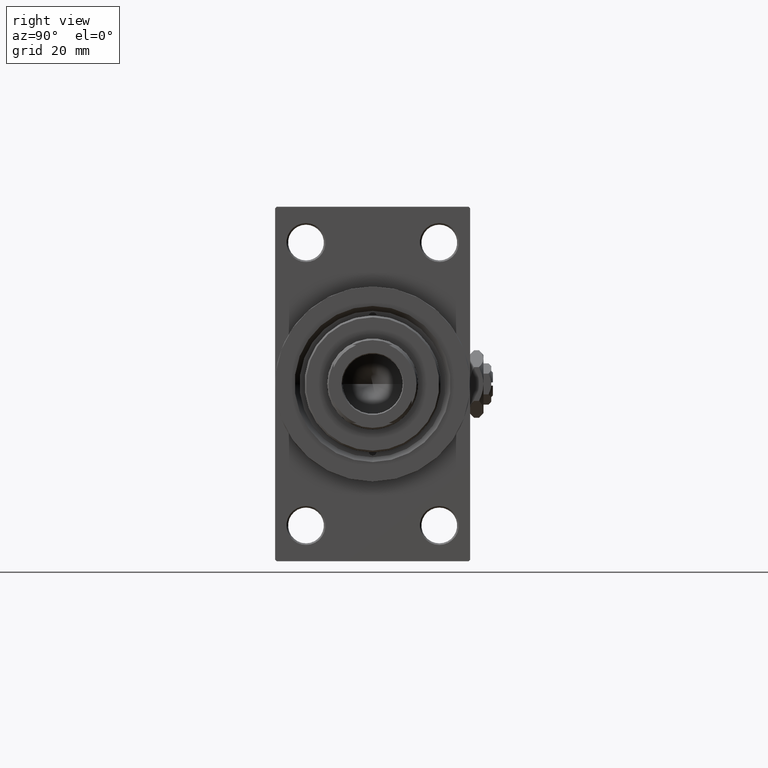
[diagram: clean part render]
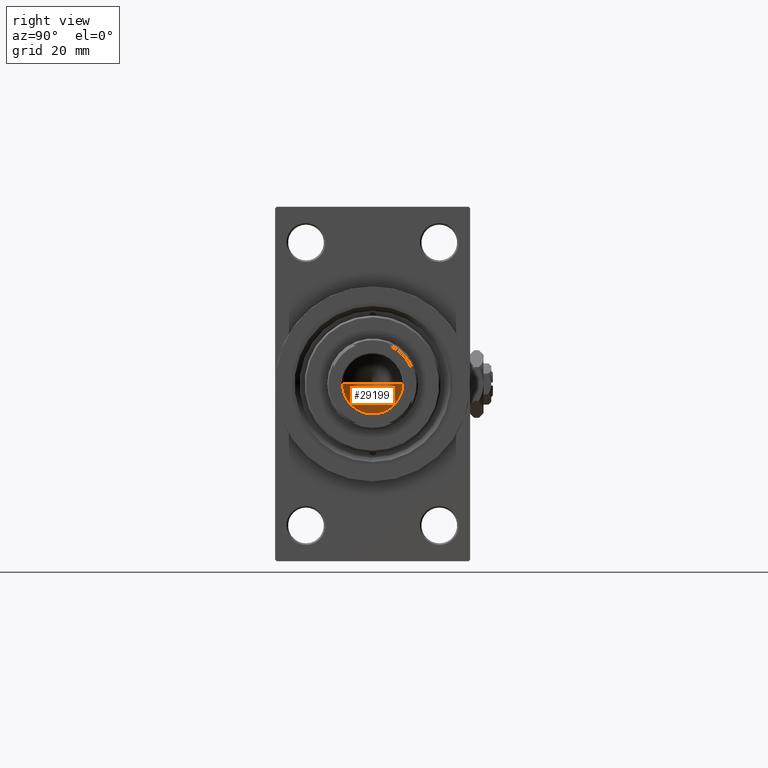
[diagram: same view with one face highlighted and labeled with its STEP entity id]
A machine part, right view. The second image highlights one B-rep face of the part: STEP entity #29199.
In plain terms, the highlighted conical surface has half-angle 59 deg.
Its self-contained STEP definition (entity closure, byte-faithful):
#1309 = VERTEX_POINT ( 'NONE', #42555 ) ;
#1711 = EDGE_CURVE ( 'NONE', #1309, #15298, #20523, .T. ) ;
#3928 = EDGE_CURVE ( 'NONE', #23798, #15298, #18252, .T. ) ;
#9197 = EDGE_CURVE ( 'NONE', #1309, #23798, #11355, .T. ) ;
#9728 = CARTESIAN_POINT ( 'NONE',  ( 9.249999999999992895, 0.000000000000000000, 101.0000000000000000 ) ) ;
#10203 = VECTOR ( 'NONE', #28476, 1000.000000000000000 ) ;
#10403 = DIRECTION ( 'NONE',  ( 1.000000000000000000, 0.000000000000000000, 0.000000000000000000 ) ) ;
#11067 = CARTESIAN_POINT ( 'NONE',  ( -9.249999999999992895, 1.132798289211300712E-15, 101.0000000000000000 ) ) ;
#11167 = EDGE_LOOP ( 'NONE', ( #13072, #34761, #23572 ) ) ;
#11355 = LINE ( 'NONE', #45201, #48647 ) ;
#13072 = ORIENTED_EDGE ( 'NONE', *, *, #1711, .F. ) ;
#13654 = AXIS2_PLACEMENT_3D ( 'NONE', #48258, #21363, #10403 ) ;
#15298 = VERTEX_POINT ( 'NONE', #11067 ) ;
#17962 = DIRECTION ( 'NONE',  ( 1.000000000000000000, 0.000000000000000000, 0.000000000000000000 ) ) ;
#18213 = DIRECTION ( 'NONE',  ( -0.000000000000000000, -0.000000000000000000, 1.000000000000000000 ) ) ;
#18252 = CIRCLE ( 'NONE', #23830, 9.249999999999992895 ) ;
#20523 = LINE ( 'NONE', #38961, #10203 ) ;
#21363 = DIRECTION ( 'NONE',  ( -0.000000000000000000, -0.000000000000000000, 1.000000000000000000 ) ) ;
#22070 = DIRECTION ( 'NONE',  ( 0.8571673007021117785, 0.000000000000000000, 0.5150380749100550437 ) ) ;
#23572 = ORIENTED_EDGE ( 'NONE', *, *, #3928, .T. ) ;
#23798 = VERTEX_POINT ( 'NONE', #9728 ) ;
#23830 = AXIS2_PLACEMENT_3D ( 'NONE', #30394, #18213, #17962 ) ;
#28476 = DIRECTION ( 'NONE',  ( -0.8571673007021117785, 1.049727191138617956E-16, 0.5150380749100550437 ) ) ;
#29078 = FACE_OUTER_BOUND ( 'NONE', #11167, .T. ) ;
#29199 = ADVANCED_FACE ( 'NONE', ( #29078 ), #38294, .F. ) ;
#30394 = CARTESIAN_POINT ( 'NONE',  ( 0.000000000000000000, 0.000000000000000000, 101.0000000000000000 ) ) ;
#34761 = ORIENTED_EDGE ( 'NONE', *, *, #9197, .T. ) ;
#38294 = CONICAL_SURFACE ( 'NONE', #13654, 9.249999999999992895, 1.029744258676653423 ) ;
#38961 = CARTESIAN_POINT ( 'NONE',  ( -9.249999999999992895, 1.132798289211300712E-15, 101.0000000000000000 ) ) ;
#42555 = CARTESIAN_POINT ( 'NONE',  ( -9.769621978240258809E-15, 0.000000000000000000, 95.44203927399506426 ) ) ;
#45201 = CARTESIAN_POINT ( 'NONE',  ( 9.249999999999992895, 0.000000000000000000, 101.0000000000000000 ) ) ;
#48258 = CARTESIAN_POINT ( 'NONE',  ( 0.000000000000000000, 0.000000000000000000, 101.0000000000000000 ) ) ;
#48647 = VECTOR ( 'NONE', #22070, 1000.000000000000000 ) ;